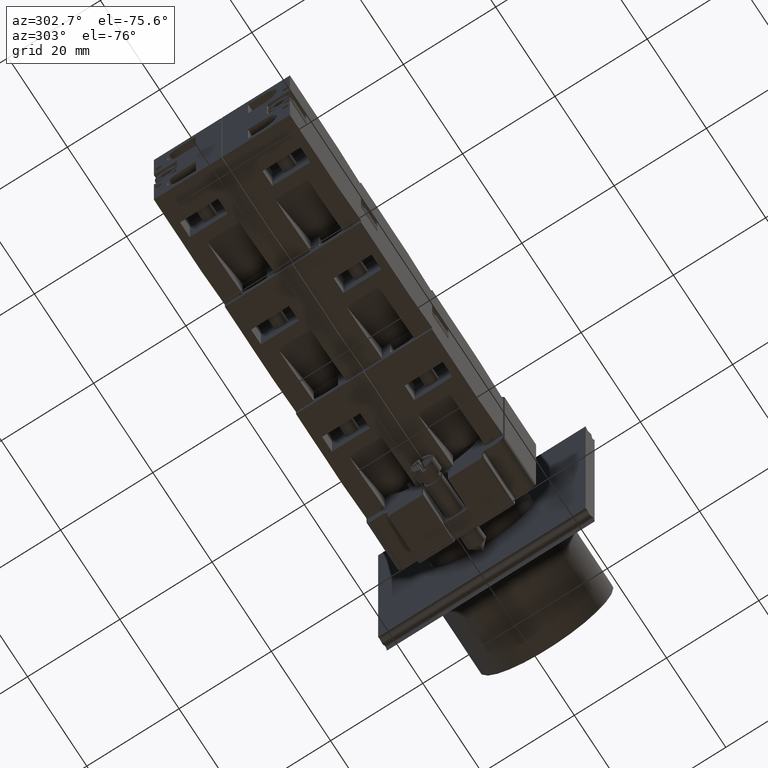
[diagram: clean part render]
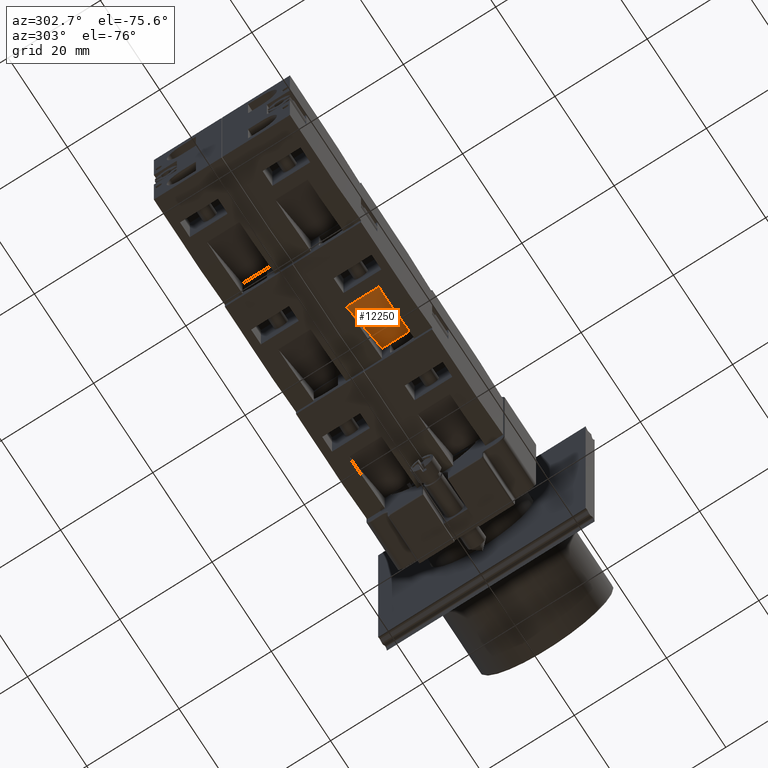
[diagram: same view with one face highlighted and labeled with its STEP entity id]
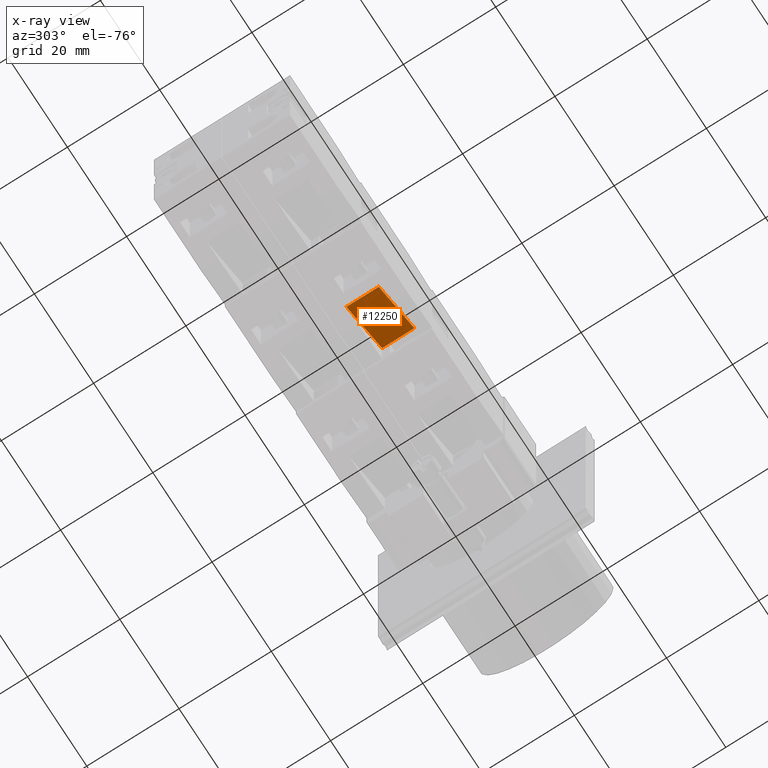
[diagram: x-ray of the same camera — body ghosted, the highlighted face saturated]
A machine part, auxiliary view. The second image highlights one B-rep face of the part: STEP entity #12250.
The next image is the same camera in x-ray: the body ghosted, the highlighted face saturated — about 0% of this face is hidden behind the body in this view.
In plain terms, the highlighted face is a freeform B-spline surface patch.
Its self-contained STEP definition (entity closure, byte-faithful):
#12195=CARTESIAN_POINT('',(-44.936741828918457,11.797073323279610,10.850000000000000));
#12196=VERTEX_POINT('',#12195);
#12203=CARTESIAN_POINT('',(-35.936741828918450,-0.202926676720384,10.850000000000000));
#12204=VERTEX_POINT('',#12203);
#12205=CARTESIAN_POINT('',(-35.936741828918450,-0.202926676720384,10.850000000000000));
#12206=DIRECTION('',(-0.600000000000000,0.800000000000000,0.0));
#12207=VECTOR('',#12206,15.0);
#12208=LINE('',#12205,#12207);
#12209=EDGE_CURVE('',#12204,#12196,#12208,.T.);
#12220=CARTESIAN_POINT('',(-44.936741828918464,11.797073323279616,3.850000000000000));
#12221=CARTESIAN_POINT('',(-44.936741828918464,11.797073323279616,10.850000000000001));
#12222=CARTESIAN_POINT('',(-35.936741828918443,-0.202926676720384,3.850000000000000));
#12223=CARTESIAN_POINT('',(-35.936741828918450,-0.202926676720384,10.850000000000001));
#12224=B_SPLINE_SURFACE_WITH_KNOTS('',1,1,((#12220,#12222),(#12221,#12223)),.UNSPECIFIED.,.F.,.F.,.U.,(2,2),(2,2),(0.0,7.000000000000002),(0.0,15.000000000000012),.UNSPECIFIED.);
#12225=CARTESIAN_POINT('',(-44.936741828918457,11.797073323279610,3.850000000000001));
#12226=VERTEX_POINT('',#12225);
#12227=CARTESIAN_POINT('',(-35.936741828918450,-0.202926676720384,3.850000000000001));
#12228=VERTEX_POINT('',#12227);
#12229=CARTESIAN_POINT('',(-44.936741828918457,11.797073323279610,3.850000000000001));
#12230=DIRECTION('',(0.600000000000000,-0.800000000000000,0.0));
#12231=VECTOR('',#12230,15.0);
#12232=LINE('',#12229,#12231);
#12233=EDGE_CURVE('',#12226,#12228,#12232,.T.);
#12234=ORIENTED_EDGE('',*,*,#12233,.T.);
#12235=CARTESIAN_POINT('',(-35.936741828918450,-0.202926676720384,10.850000000000000));
#12236=DIRECTION('',(0.0,0.0,-1.0));
#12237=VECTOR('',#12236,6.999999999999999);
#12238=LINE('',#12235,#12237);
#12239=EDGE_CURVE('',#12204,#12228,#12238,.T.);
#12240=ORIENTED_EDGE('',*,*,#12239,.F.);
#12241=ORIENTED_EDGE('',*,*,#12209,.T.);
#12242=CARTESIAN_POINT('',(-44.936741828918457,11.797073323279610,3.850000000000001));
#12243=DIRECTION('',(0.0,0.0,1.0));
#12244=VECTOR('',#12243,6.999999999999999);
#12245=LINE('',#12242,#12244);
#12246=EDGE_CURVE('',#12226,#12196,#12245,.T.);
#12247=ORIENTED_EDGE('',*,*,#12246,.F.);
#12248=EDGE_LOOP('',(#12234,#12240,#12241,#12247));
#12249=FACE_OUTER_BOUND('',#12248,.T.);
#12250=ADVANCED_FACE('',(#12249),#12224,.F.);